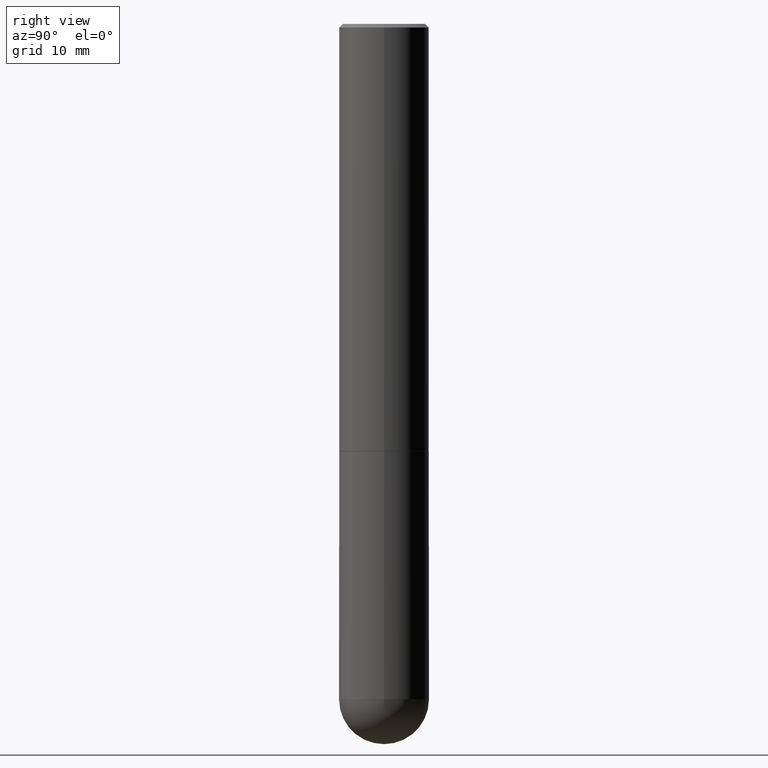
[diagram: clean part render]
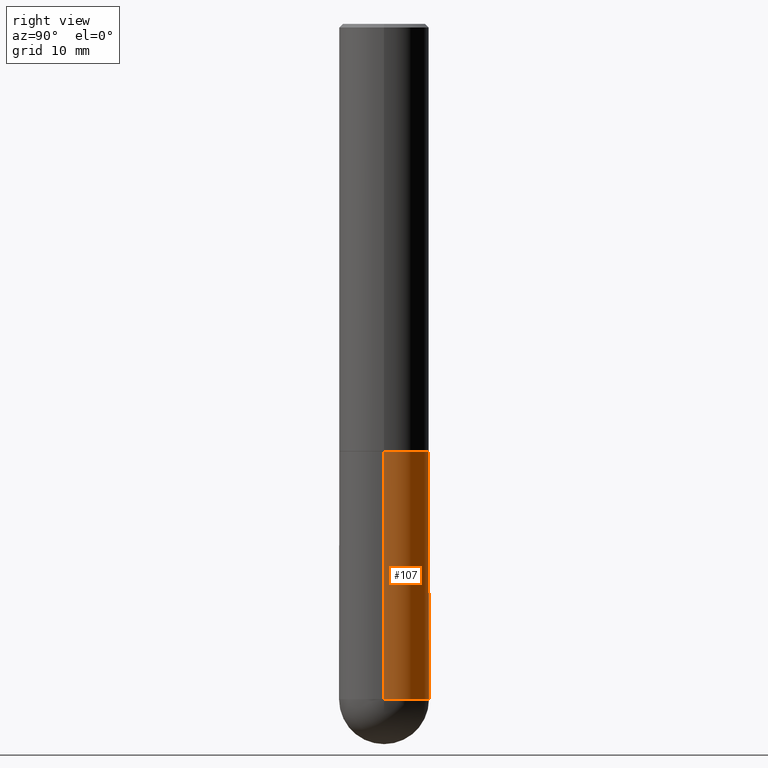
[diagram: same view with one face highlighted and labeled with its STEP entity id]
A machine part, right view. The second image highlights one B-rep face of the part: STEP entity #107.
In plain terms, the highlighted cylindrical surface (partial cylindrical patch) has radius 6.35 mm, axis along (-0, 0, 1).
Its self-contained STEP definition (entity closure, byte-faithful):
#18 = AXIS2_PLACEMENT_3D ( 'NONE', #321, #35, #33 ) ;
#21 = VERTEX_POINT ( 'NONE', #189 ) ;
#30 = DIRECTION ( 'NONE',  ( 1.000000000000000000, -6.982962677686262766E-15, 0.000000000000000000 ) ) ;
#33 = DIRECTION ( 'NONE',  ( 1.000000000000000000, -6.982962677686266711E-15, 4.876176775795935793E-29 ) ) ;
#35 = DIRECTION ( 'NONE',  ( -2.445468806185136597E-29, 3.491481338843145583E-15, 1.000000000000000000 ) ) ;
#49 = VERTEX_POINT ( 'NONE', #105 ) ;
#53 = VERTEX_POINT ( 'NONE', #63 ) ;
#58 = AXIS2_PLACEMENT_3D ( 'NONE', #62, #218, #30 ) ;
#61 = DIRECTION ( 'NONE',  ( -2.445468806185136597E-29, 3.491481338843145583E-15, 1.000000000000000000 ) ) ;
#62 = CARTESIAN_POINT ( 'NONE',  ( 9.170508023194262238E-29, -1.309305502066179741E-14, -3.750000000000000000 ) ) ;
#63 = CARTESIAN_POINT ( 'NONE',  ( -0.2500000000000000000, -8.916304760806884090E-15, -2.375000000000000000 ) ) ;
#66 = DIRECTION ( 'NONE',  ( -2.445468806185136597E-29, 3.491481338843145583E-15, 1.000000000000000000 ) ) ;
#73 = LINE ( 'NONE', #296, #394 ) ;
#74 = DIRECTION ( 'NONE',  ( 1.000000000000000000, -6.982962677686262766E-15, 0.000000000000000000 ) ) ;
#83 = EDGE_CURVE ( 'NONE', #343, #53, #379, .T. ) ;
#94 = EDGE_LOOP ( 'NONE', ( #148, #371, #312, #366, #406 ) ) ;
#105 = CARTESIAN_POINT ( 'NONE',  ( 1.745740669421657002E-15, 0.2499999999999867606, -3.750000000000001332 ) ) ;
#107 = ADVANCED_FACE ( 'NONE', ( #195 ), #320, .T. ) ;
#108 = LINE ( 'NONE', #392, #182 ) ;
#112 = CARTESIAN_POINT ( 'NONE',  ( -0.2500000000000000000, -8.916304760806885668E-15, -3.750000000000000000 ) ) ;
#138 = EDGE_CURVE ( 'NONE', #21, #49, #367, .T. ) ;
#148 = ORIENTED_EDGE ( 'NONE', *, *, #293, .T. ) ;
#151 = AXIS2_PLACEMENT_3D ( 'NONE', #255, #61, #383 ) ;
#169 = AXIS2_PLACEMENT_3D ( 'NONE', #395, #66, #74 ) ;
#173 = DIRECTION ( 'NONE',  ( -2.445468806185136877E-29, 3.491481338843145188E-15, 1.000000000000000000 ) ) ;
#177 = CIRCLE ( 'NONE', #169, 0.2500000000000000000 ) ;
#182 = VECTOR ( 'NONE', #173, 39.37007874015748143 ) ;
#189 = CARTESIAN_POINT ( 'NONE',  ( 0.2500000000000000000, -1.243840226962870281E-14, -3.750000000000000000 ) ) ;
#195 = FACE_OUTER_BOUND ( 'NONE', #94, .T. ) ;
#204 = DIRECTION ( 'NONE',  ( -2.445468806185136877E-29, 3.491481338843145188E-15, 1.000000000000000000 ) ) ;
#217 = VERTEX_POINT ( 'NONE', #112 ) ;
#218 = DIRECTION ( 'NONE',  ( -2.445468806185136597E-29, 3.491481338843145583E-15, 1.000000000000000000 ) ) ;
#239 = EDGE_CURVE ( 'NONE', #217, #53, #108, .T. ) ;
#255 = CARTESIAN_POINT ( 'NONE',  ( 5.807988414689699417E-29, -8.292268179752470118E-15, -2.375000000000000000 ) ) ;
#293 = EDGE_CURVE ( 'NONE', #49, #217, #177, .T. ) ;
#296 = CARTESIAN_POINT ( 'NONE',  ( 0.2500000000000000000, -1.745740669421566678E-15, 1.219044193948983948E-29 ) ) ;
#312 = ORIENTED_EDGE ( 'NONE', *, *, #83, .F. ) ;
#314 = EDGE_CURVE ( 'NONE', #21, #343, #73, .T. ) ;
#320 = CYLINDRICAL_SURFACE ( 'NONE', #18, 0.2500000000000000000 ) ;
#321 = CARTESIAN_POINT ( 'NONE',  ( 0.000000000000000000, 0.000000000000000000, 0.000000000000000000 ) ) ;
#343 = VERTEX_POINT ( 'NONE', #359 ) ;
#359 = CARTESIAN_POINT ( 'NONE',  ( 0.2500000000000000000, -1.003800884917403837E-14, -2.375000000000000000 ) ) ;
#366 = ORIENTED_EDGE ( 'NONE', *, *, #314, .F. ) ;
#367 = CIRCLE ( 'NONE', #58, 0.2500000000000000000 ) ;
#371 = ORIENTED_EDGE ( 'NONE', *, *, #239, .T. ) ;
#379 = CIRCLE ( 'NONE', #151, 0.2500000000000000000 ) ;
#383 = DIRECTION ( 'NONE',  ( 1.000000000000000000, -6.982962677686270655E-15, 0.000000000000000000 ) ) ;
#392 = CARTESIAN_POINT ( 'NONE',  ( -0.2500000000000000000, 1.776356839400250465E-15, -1.229733772563726445E-29 ) ) ;
#394 = VECTOR ( 'NONE', #204, 39.37007874015748143 ) ;
#395 = CARTESIAN_POINT ( 'NONE',  ( 9.170508023194262238E-29, -1.309305502066179741E-14, -3.750000000000000000 ) ) ;
#406 = ORIENTED_EDGE ( 'NONE', *, *, #138, .T. ) ;